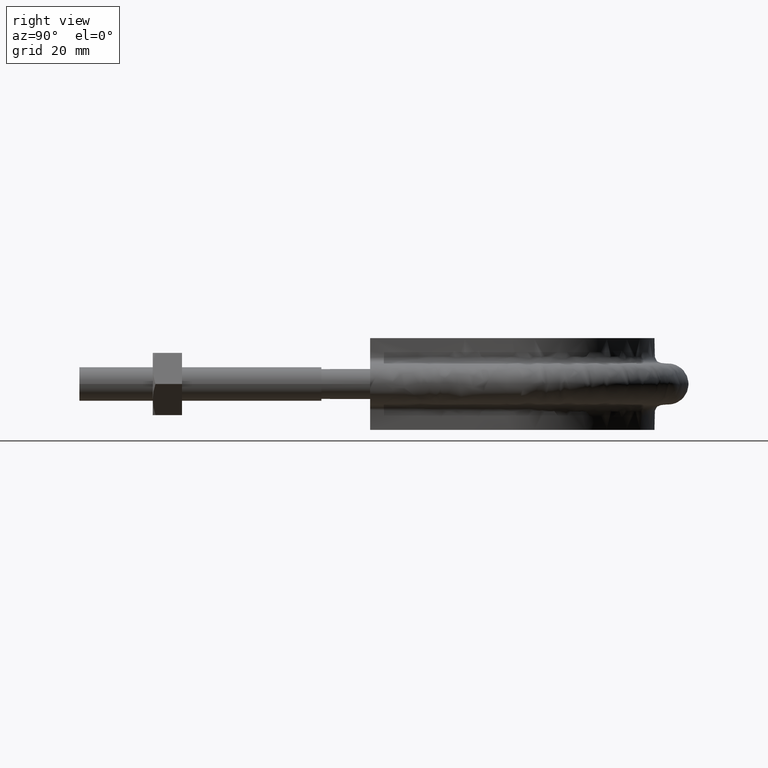
[diagram: clean part render]
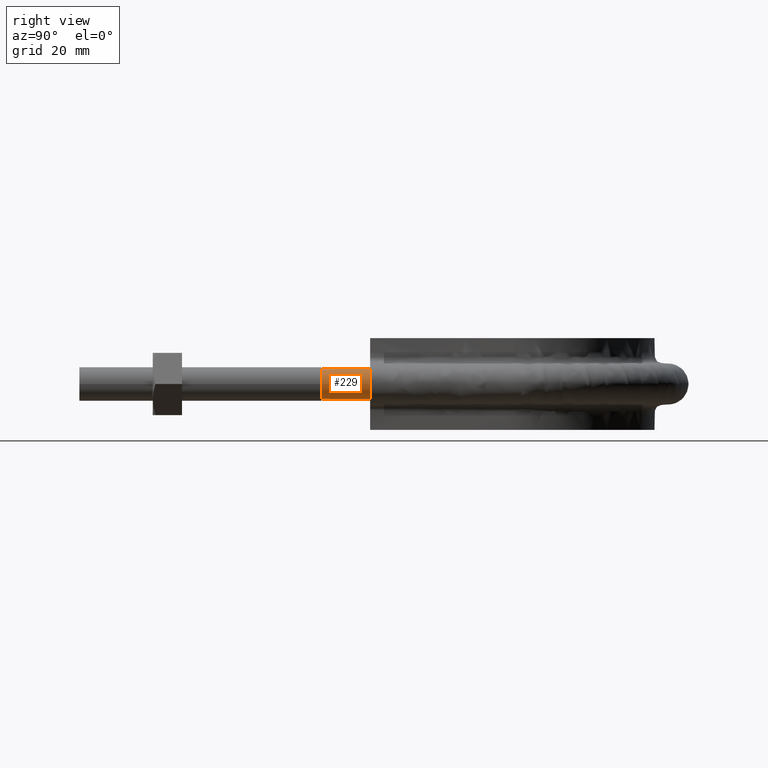
[diagram: same view with one face highlighted and labeled with its STEP entity id]
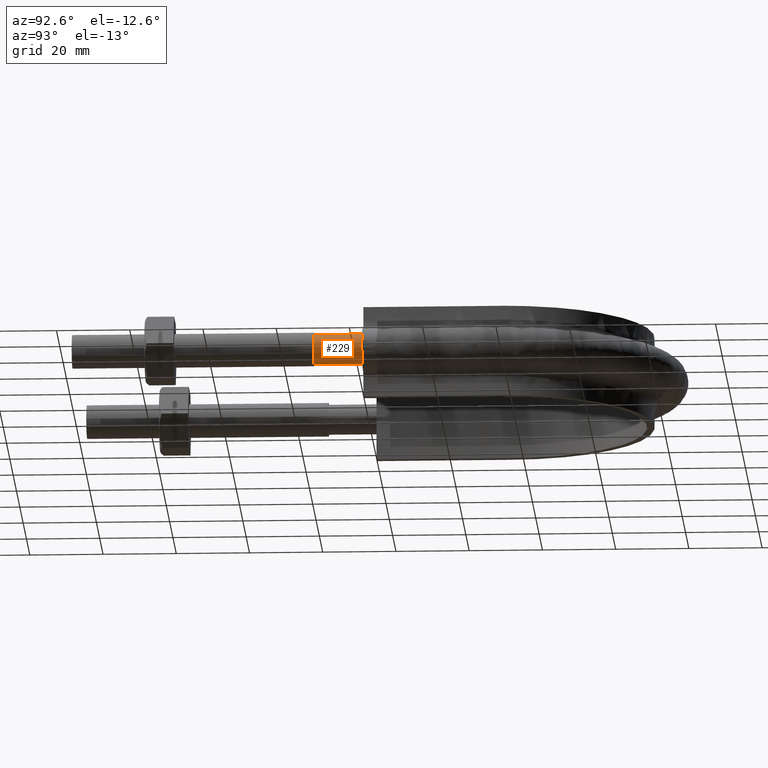
[diagram: same view with one face highlighted and labeled with its STEP entity id]
A machine part, right view. The second image highlights one B-rep face of the part: STEP entity #229.
A second angle (auxiliary view) of the same face is appended — the face is thin or edge-on in the first view.
In plain terms, the highlighted cylindrical surface (bore or boss wall) has radius 4.1 mm, axis along (0, 1, 0).
Its self-contained STEP definition (entity closure, byte-faithful):
#229 = ADVANCED_FACE( '', ( #321, #322 ), #323, .T. );
#321 = FACE_OUTER_BOUND( '', #1318, .T. );
#322 = FACE_OUTER_BOUND( '', #1319, .T. );
#323 = CYLINDRICAL_SURFACE( '', #1320, 4.10000000000000 );
#1318 = EDGE_LOOP( '', ( #1552, #1553, #1554, #1555, #1556, #1557, #1558 ) );
#1319 = EDGE_LOOP( '', ( #1559 ) );
#1320 = AXIS2_PLACEMENT_3D( '', #1560, #1561, #1562 );
#1552 = ORIENTED_EDGE( '', *, *, #2040, .T. );
#1553 = ORIENTED_EDGE( '', *, *, #2041, .T. );
#1554 = ORIENTED_EDGE( '', *, *, #2042, .T. );
#1555 = ORIENTED_EDGE( '', *, *, #2043, .T. );
#1556 = ORIENTED_EDGE( '', *, *, #2044, .T. );
#1557 = ORIENTED_EDGE( '', *, *, #2045, .T. );
#1558 = ORIENTED_EDGE( '', *, *, #2046, .T. );
#1559 = ORIENTED_EDGE( '', *, *, #2047, .T. );
#1560 = CARTESIAN_POINT( '', ( 44.0000000000000, 79.3000000000000, 2.31450600872429E-015 ) );
#1561 = DIRECTION( '', ( 2.44921270764475E-016, 1.00000000000000, 6.12303176911189E-017 ) );
#1562 = DIRECTION( '', ( 1.00000000000000, -2.44921270764475E-016, -7.49830360911069E-033 ) );
#2040 = EDGE_CURVE( '', #2209, #2207, #2218, .T. );
#2041 = EDGE_CURVE( '', #2207, #2205, #2219, .T. );
#2042 = EDGE_CURVE( '', #2205, #2204, #2220, .T. );
#2043 = EDGE_CURVE( '', #2204, #2215, #2221, .T. );
#2044 = EDGE_CURVE( '', #2215, #2213, #2222, .T. );
#2045 = EDGE_CURVE( '', #2213, #2211, #2223, .T. );
#2046 = EDGE_CURVE( '', #2211, #2209, #2224, .T. );
#2047 = EDGE_CURVE( '', #2225, #2225, #2226, .T. );
#2204 = VERTEX_POINT( '', #2692 );
#2205 = VERTEX_POINT( '', #2693 );
#2207 = VERTEX_POINT( '', #2698 );
#2209 = VERTEX_POINT( '', #2703 );
#2211 = VERTEX_POINT( '', #2708 );
#2213 = VERTEX_POINT( '', #2713 );
#2215 = VERTEX_POINT( '', #2718 );
#2218 = CIRCLE( '', #2727, 4.10000000000000 );
#2219 = CIRCLE( '', #2728, 4.10000000000000 );
#2220 = CIRCLE( '', #2729, 4.10000000000000 );
#2221 = CIRCLE( '', #2730, 4.10000000000000 );
#2222 = CIRCLE( '', #2731, 4.10000000000000 );
#2223 = CIRCLE( '', #2732, 4.10000000000000 );
#2224 = CIRCLE( '', #2733, 4.10000000000000 );
#2225 = VERTEX_POINT( '', #2734 );
#2226 = CIRCLE( '', #2735, 4.10000000000000 );
#2692 = CARTESIAN_POINT( '', ( 39.9000000000000, 79.3000000000000, -3.30788549888553E-014 ) );
#2693 = CARTESIAN_POINT( '', ( 41.4436918123789, 79.3000000000000, 3.20550907811870 ) );
#2698 = CARTESIAN_POINT( '', ( 44.9123358292208, 79.3000000000000, 3.99720443994549 ) );
#2703 = CARTESIAN_POINT( '', ( 47.6939723583999, 79.3000000000000, 1.77892333038204 ) );
#2708 = CARTESIAN_POINT( '', ( 47.6939723583999, 79.3000000000000, -1.77892333038203 ) );
#2713 = CARTESIAN_POINT( '', ( 44.9123358292214, 79.3000000000000, -3.99720443994536 ) );
#2718 = CARTESIAN_POINT( '', ( 41.4436918123816, 79.3000000000000, -3.20550907812083 ) );
#2727 = AXIS2_PLACEMENT_3D( '', #3103, #3104, #3105 );
#2728 = AXIS2_PLACEMENT_3D( '', #3106, #3107, #3108 );
#2729 = AXIS2_PLACEMENT_3D( '', #3109, #3110, #3111 );
#2730 = AXIS2_PLACEMENT_3D( '', #3112, #3113, #3114 );
#2731 = AXIS2_PLACEMENT_3D( '', #3115, #3116, #3117 );
#2732 = AXIS2_PLACEMENT_3D( '', #3118, #3119, #3120 );
#2733 = AXIS2_PLACEMENT_3D( '', #3121, #3122, #3123 );
#2734 = CARTESIAN_POINT( '', ( 48.1000000000000, 66.0000000000000, 1.50014278343241E-015 ) );
#2735 = AXIS2_PLACEMENT_3D( '', #3124, #3125, #3126 );
#3103 = CARTESIAN_POINT( '', ( 44.0000000000000, 79.3000000000000, 2.31450600872429E-015 ) );
#3104 = DIRECTION( '', ( -2.44921270764475E-016, -1.00000000000000, -6.12303176911189E-017 ) );
#3105 = DIRECTION( '', ( 1.00000000000000, -2.44921270764475E-016, -7.49830360911068E-033 ) );
#3106 = CARTESIAN_POINT( '', ( 44.0000000000000, 79.3000000000000, 2.31450600872429E-015 ) );
#3107 = DIRECTION( '', ( -2.44921270764475E-016, -1.00000000000000, -6.12303176911189E-017 ) );
#3108 = DIRECTION( '', ( 1.00000000000000, -2.44921270764475E-016, -7.49830360911068E-033 ) );
#3109 = CARTESIAN_POINT( '', ( 44.0000000000000, 79.3000000000000, 2.31450600872429E-015 ) );
#3110 = DIRECTION( '', ( -2.44921270764475E-016, -1.00000000000000, -6.12303176911189E-017 ) );
#3111 = DIRECTION( '', ( 1.00000000000000, -2.44921270764475E-016, -7.49830360911068E-033 ) );
#3112 = CARTESIAN_POINT( '', ( 44.0000000000000, 79.3000000000000, 2.31450600872429E-015 ) );
#3113 = DIRECTION( '', ( -2.44921270764475E-016, -1.00000000000000, -6.12303176911189E-017 ) );
#3114 = DIRECTION( '', ( 1.00000000000000, -2.44921270764475E-016, -7.49830360911068E-033 ) );
#3115 = CARTESIAN_POINT( '', ( 44.0000000000000, 79.3000000000000, 2.31450600872429E-015 ) );
#3116 = DIRECTION( '', ( -2.44921270764475E-016, -1.00000000000000, -6.12303176911189E-017 ) );
#3117 = DIRECTION( '', ( 1.00000000000000, -2.44921270764475E-016, -7.49830360911068E-033 ) );
#3118 = CARTESIAN_POINT( '', ( 44.0000000000000, 79.3000000000000, 2.31450600872429E-015 ) );
#3119 = DIRECTION( '', ( -2.44921270764475E-016, -1.00000000000000, -6.12303176911189E-017 ) );
#3120 = DIRECTION( '', ( 1.00000000000000, -2.44921270764475E-016, -7.49830360911068E-033 ) );
#3121 = CARTESIAN_POINT( '', ( 44.0000000000000, 79.3000000000000, 2.31450600872429E-015 ) );
#3122 = DIRECTION( '', ( -2.44921270764475E-016, -1.00000000000000, -6.12303176911189E-017 ) );
#3123 = DIRECTION( '', ( 1.00000000000000, -2.44921270764475E-016, -7.49830360911068E-033 ) );
#3124 = CARTESIAN_POINT( '', ( 44.0000000000000, 66.0000000000000, 1.50014278343241E-015 ) );
#3125 = DIRECTION( '', ( 2.44921270764475E-016, 1.00000000000000, 6.12303176911189E-017 ) );
#3126 = DIRECTION( '', ( 1.00000000000000, -2.44921270764475E-016, 0.000000000000000 ) );